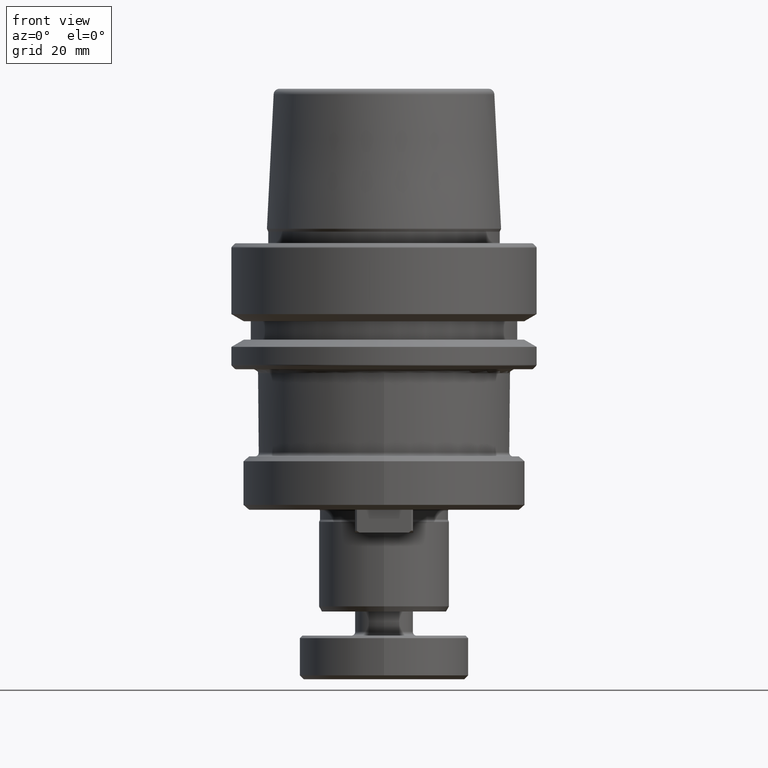
[diagram: clean part render]
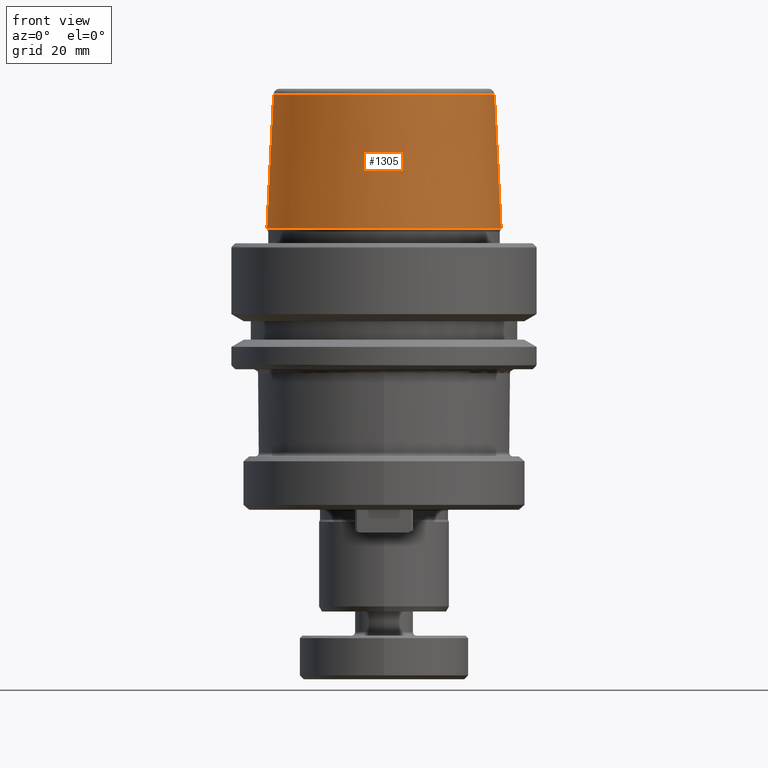
[diagram: same view with one face highlighted and labeled with its STEP entity id]
A machine part, front view. The second image highlights one B-rep face of the part: STEP entity #1305.
In plain terms, the highlighted conical surface has half-angle 2.868 deg.
Its self-contained STEP definition (entity closure, byte-faithful):
#195 = VERTEX_POINT ( 'NONE', #2806 ) ;
#400 = ORIENTED_EDGE ( 'NONE', *, *, #2134, .F. ) ;
#521 = LINE ( 'NONE', #2157, #1688 ) ;
#715 = VERTEX_POINT ( 'NONE', #1631 ) ;
#743 = CARTESIAN_POINT ( 'NONE',  ( 24.17032625081241900, 0.0000000000000000000, 3.000000000000002700 ) ) ;
#757 = DIRECTION ( 'NONE',  ( 0.05003611051310812000, 6.127656258166108900E-018, -0.9987474093306675200 ) ) ;
#811 = EDGE_CURVE ( 'NONE', #715, #1772, #817, .T. ) ;
#817 = CIRCLE ( 'NONE', #992, 24.17032625081241900 ) ;
#992 = AXIS2_PLACEMENT_3D ( 'NONE', #1488, #1709, #1017 ) ;
#997 = EDGE_LOOP ( 'NONE', ( #2266, #400, #2276, #2167 ) ) ;
#1017 = DIRECTION ( 'NONE',  ( 1.000000000000000000, 0.0000000000000000000, 0.0000000000000000000 ) ) ;
#1077 = DIRECTION ( 'NONE',  ( -1.000000000000000000, 0.0000000000000000000, 0.0000000000000000000 ) ) ;
#1217 = FACE_OUTER_BOUND ( 'NONE', #997, .T. ) ;
#1305 = ADVANCED_FACE ( 'NONE', ( #1217 ), #1695, .T. ) ;
#1314 = CARTESIAN_POINT ( 'NONE',  ( 0.0000000000000000000, 0.0000000000000000000, 3.000000000000002700 ) ) ;
#1352 = CARTESIAN_POINT ( 'NONE',  ( 0.0000000000000000000, 0.0000000000000000000, 30.76004333261571900 ) ) ;
#1488 = CARTESIAN_POINT ( 'NONE',  ( 0.0000000000000000000, 0.0000000000000000000, 3.000000000000002700 ) ) ;
#1548 = DIRECTION ( 'NONE',  ( 0.0000000000000000000, 0.0000000000000000000, -1.000000000000000000 ) ) ;
#1576 = DIRECTION ( 'NONE',  ( 1.000000000000000000, 0.0000000000000000000, 0.0000000000000000000 ) ) ;
#1631 = CARTESIAN_POINT ( 'NONE',  ( -24.17032625081241900, 2.960011267740467600E-015, 3.000000000000002700 ) ) ;
#1688 = VECTOR ( 'NONE', #757, 1000.000000000000200 ) ;
#1695 = CONICAL_SURFACE ( 'NONE', #2896, 24.17032625081241900, 0.05005701257456005000 ) ;
#1708 = EDGE_CURVE ( 'NONE', #195, #715, #2195, .T. ) ;
#1709 = DIRECTION ( 'NONE',  ( -0.0000000000000000000, -0.0000000000000000000, 1.000000000000000000 ) ) ;
#1772 = VERTEX_POINT ( 'NONE', #743 ) ;
#1961 = CIRCLE ( 'NONE', #2883, 22.77957961851797100 ) ;
#2134 = EDGE_CURVE ( 'NONE', #195, #2644, #1961, .T. ) ;
#2157 = CARTESIAN_POINT ( 'NONE',  ( 24.17032625081241900, 2.960011267740467600E-015, 3.000000000000002700 ) ) ;
#2167 = ORIENTED_EDGE ( 'NONE', *, *, #811, .T. ) ;
#2195 = LINE ( 'NONE', #2582, #2532 ) ;
#2266 = ORIENTED_EDGE ( 'NONE', *, *, #2972, .F. ) ;
#2276 = ORIENTED_EDGE ( 'NONE', *, *, #1708, .T. ) ;
#2532 = VECTOR ( 'NONE', #2805, 1000.000000000000200 ) ;
#2582 = CARTESIAN_POINT ( 'NONE',  ( -24.17032625081241900, 0.0000000000000000000, 3.000000000000002700 ) ) ;
#2644 = VERTEX_POINT ( 'NONE', #2946 ) ;
#2805 = DIRECTION ( 'NONE',  ( -0.05003611051310812000, 0.0000000000000000000, -0.9987474093306675200 ) ) ;
#2806 = CARTESIAN_POINT ( 'NONE',  ( -22.77957961851797100, 0.0000000000000000000, 30.76004333261571900 ) ) ;
#2883 = AXIS2_PLACEMENT_3D ( 'NONE', #1352, #2963, #1576 ) ;
#2896 = AXIS2_PLACEMENT_3D ( 'NONE', #1314, #1548, #1077 ) ;
#2946 = CARTESIAN_POINT ( 'NONE',  ( 22.77957961851797100, 2.874852597157249900E-015, 30.76004333261571900 ) ) ;
#2963 = DIRECTION ( 'NONE',  ( -0.0000000000000000000, -0.0000000000000000000, 1.000000000000000000 ) ) ;
#2972 = EDGE_CURVE ( 'NONE', #2644, #1772, #521, .T. ) ;